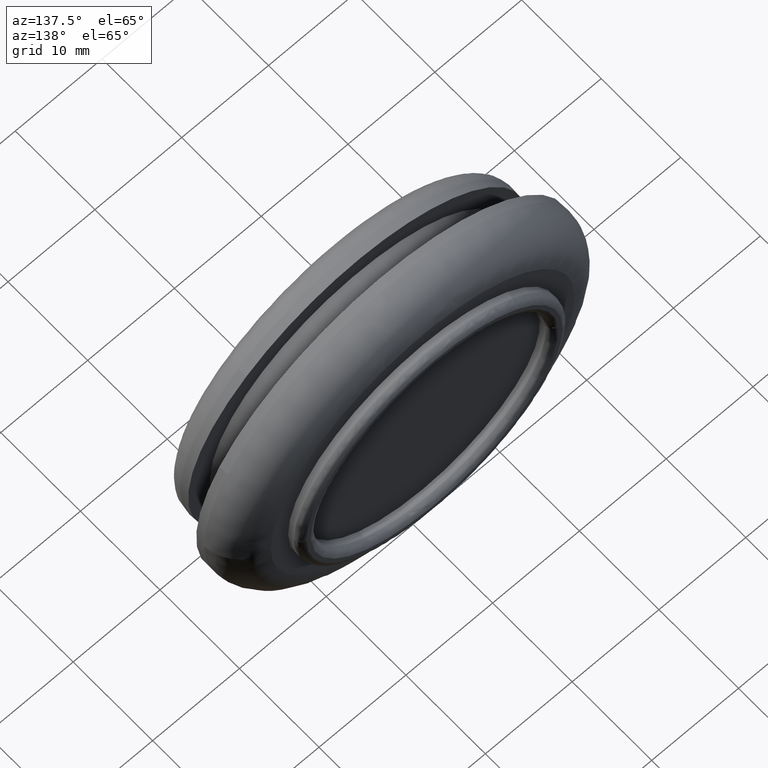
[diagram: clean part render]
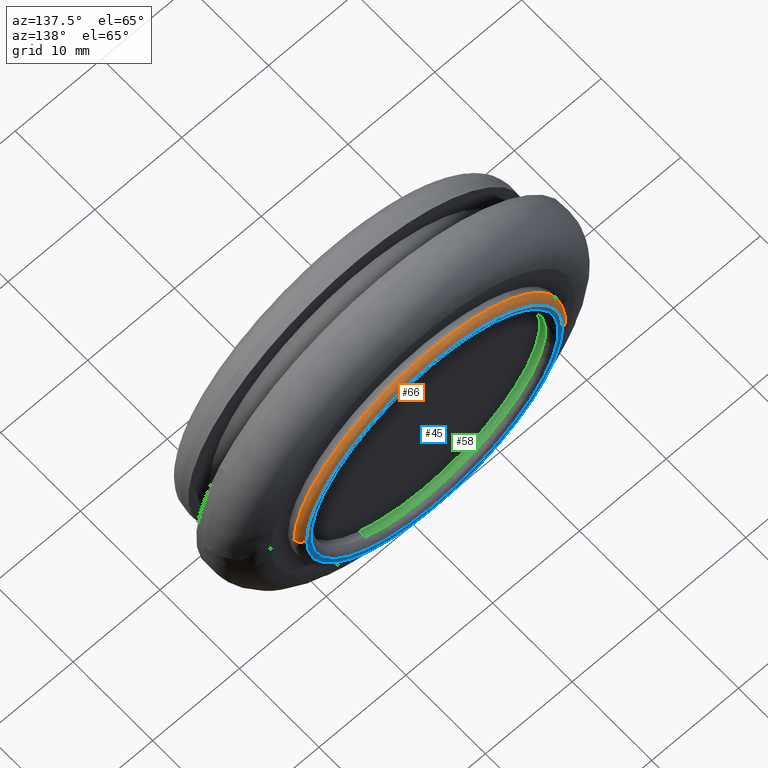
[diagram: same view with three faces highlighted in distinct colors, each labeled with its STEP entity id]
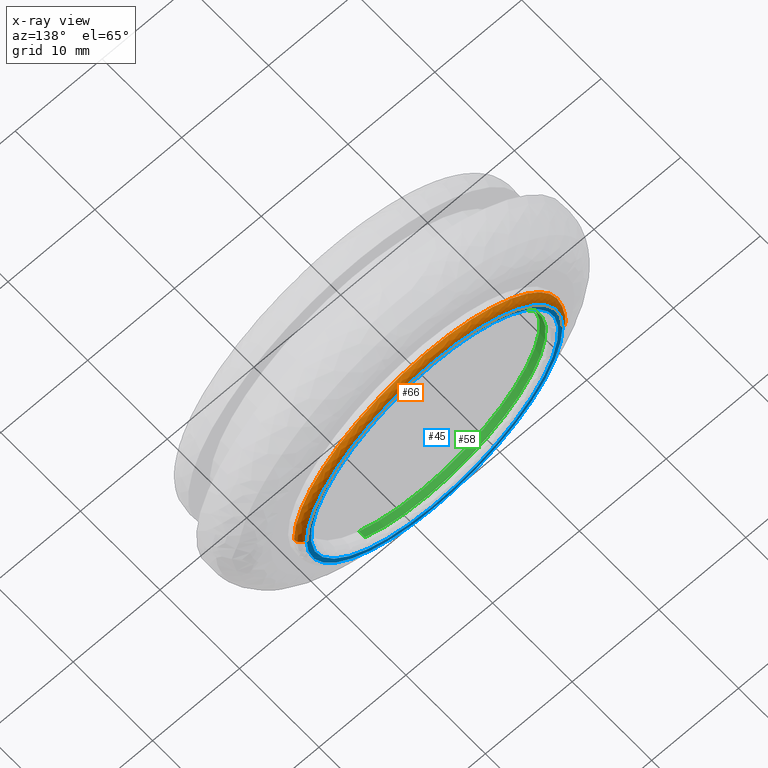
[diagram: x-ray of the same camera — body ghosted, the three highlighted faces saturated]
A machine part, auxiliary view with three faces highlighted in distinct colors.
The next image is the same camera in x-ray (body ghosted, the three faces saturated) — at least one of them is partly hidden behind the body in this view.
Their STEP definitions:

[orange] entity #66 — the highlighted face is a freeform B-spline surface patch.
#66=ADVANCED_FACE('',(#333),#332,.T.);
#332=( BOUNDED_SURFACE() B_SPLINE_SURFACE( 2,2,((#624,#625,#626,#627,#628),(#629,#630,#631,#632,#633),(#634,#635,#636,#637,#638),(#639,#640,#641,#642,#643),(#644,#645,#646,#647,#648)), .UNSPECIFIED.,.F.,.F.,.F.) B_SPLINE_SURFACE_WITH_KNOTS((3,2,3),(3,2,3),(0.00000000000E+000,5.00000000000E-001,1.00000000000E+000),(0.00000000000E+000,5.00000000000E-001,1.00000000000E+000), .UNSPECIFIED. ) GEOMETRIC_REPRESENTATION_ITEM() RATIONAL_B_SPLINE_SURFACE(((1.00000000000E+000,7.07106781127E-001,1.00000000000E+000,7.07106781127E-001,1.00000000000E+000),(7.07106781187E-001,4.99999999958E-001,7.07106781187E-001,4.99999999958E-001,7.07106781187E-001),(1.00000000000E+000,7.07106781127E-001,1.00000000000E+000,7.07106781127E-001,1.00000000000E+000),(7.07106781187E-001,4.99999999958E-001,7.07106781187E-001,4.99999999958E-001,7.07106781187E-001),(1.00000000000E+000,7.07106781127E-001,1.00000000000E+000,7.07106781127E-001,1.00000000000E+000))) REPRESENTATION_ITEM('') SURFACE() );
#333=FACE_OUTER_BOUND('',#649,.T.);
#624=CARTESIAN_POINT('',(1.40000000000E+001,1.19499999997E+001,6.02815841678E-014));
#625=CARTESIAN_POINT('',(1.39999999997E+001,1.26999999999E+001,5.72253133452E-014));
#626=CARTESIAN_POINT('',(1.47499999999E+001,1.27000000000E+001,5.72253103113E-014));
#627=CARTESIAN_POINT('',(1.55000000000E+001,1.27000000001E+001,5.72253072773E-014));
#628=CARTESIAN_POINT('',(1.55000000000E+001,1.19500000000E+001,6.02815780999E-014));
#629=CARTESIAN_POINT('',(1.40000000000E+001,1.19499999997E+001,1.40000000000E+001));
#630=CARTESIAN_POINT('',(1.39999999997E+001,1.26999999999E+001,1.39999999997E+001));
#631=CARTESIAN_POINT('',(1.47499999999E+001,1.27000000000E+001,1.47499999999E+001));
#632=CARTESIAN_POINT('',(1.55000000000E+001,1.27000000001E+001,1.55000000000E+001));
#633=CARTESIAN_POINT('',(1.55000000000E+001,1.19500000000E+001,1.55000000000E+001));
#634=CARTESIAN_POINT('',(-6.18438971550E-013,1.19499999997E+001,1.40000000000E+001));
#635=CARTESIAN_POINT('',(-5.92146565826E-013,1.26999999999E+001,1.39999999997E+001));
#636=CARTESIAN_POINT('',(-5.92100638534E-013,1.27000000000E+001,1.47499999999E+001));
#637=CARTESIAN_POINT('',(-5.92054711241E-013,1.27000000001E+001,1.55000000000E+001));
#638=CARTESIAN_POINT('',(-6.18347116964E-013,1.19500000000E+001,1.55000000000E+001));
#639=CARTESIAN_POINT('',(-1.40000000000E+001,1.19499999997E+001,1.40000000000E+001));
#640=CARTESIAN_POINT('',(-1.39999999997E+001,1.26999999999E+001,1.39999999997E+001));
#641=CARTESIAN_POINT('',(-1.47499999999E+001,1.27000000000E+001,1.47499999999E+001));
#642=CARTESIAN_POINT('',(-1.55000000000E+001,1.27000000001E+001,1.55000000000E+001));
#643=CARTESIAN_POINT('',(-1.55000000000E+001,1.19500000000E+001,1.55000000000E+001));
#644=CARTESIAN_POINT('',(-1.40000000000E+001,1.19499999997E+001,6.19962029335E-014));
#645=CARTESIAN_POINT('',(-1.39999999997E+001,1.26999999999E+001,5.89399321109E-014));
#646=CARTESIAN_POINT('',(-1.47499999999E+001,1.27000000000E+001,5.90317836537E-014));
#647=CARTESIAN_POINT('',(-1.55000000000E+001,1.27000000001E+001,5.91236351965E-014));
#648=CARTESIAN_POINT('',(-1.55000000000E+001,1.19500000000E+001,6.21799060191E-014));
#649=EDGE_LOOP('',(#808,#809,#810,#811,#812,#813));
#808=ORIENTED_EDGE('',*,*,#838,.T.);
#809=ORIENTED_EDGE('',*,*,#894,.T.);
#810=ORIENTED_EDGE('',*,*,#875,.F.);
#811=ORIENTED_EDGE('',*,*,#882,.F.);
#812=ORIENTED_EDGE('',*,*,#881,.F.);
#813=ORIENTED_EDGE('',*,*,#895,.F.);
#838=EDGE_CURVE('',#1065,#1057,#1066,.T.);
#875=EDGE_CURVE('',#1311,#1312,#1313,.T.);
#881=EDGE_CURVE('',#1345,#1352,#1353,.T.);
#882=EDGE_CURVE('',#1352,#1311,#1359,.T.);
#894=EDGE_CURVE('',#1057,#1312,#1438,.T.);
#895=EDGE_CURVE('',#1065,#1345,#1444,.T.);
#1057=VERTEX_POINT('',#1565);
#1065=VERTEX_POINT('',#1571);
#1066=CIRCLE('',#1575,1.47500000037E+001);
#1311=VERTEX_POINT('',#1725);
#1312=VERTEX_POINT('',#1726);
#1313=CIRCLE('',#1730,1.55000000000E+001);
#1345=VERTEX_POINT('',#1745);
#1352=VERTEX_POINT('',#1750);
#1353=CIRCLE('',#1754,1.55000000000E+001);
#1359=CIRCLE('',#1758,1.55000000000E+001);
#1438=(BOUNDED_CURVE() B_SPLINE_CURVE(2,(#1806,#1807,#1808),.UNSPECIFIED.,.F.,.F.) B_SPLINE_CURVE_WITH_KNOTS((3,3),(5.00000000000E-001,1.00000000000E+000),.UNSPECIFIED.) CURVE() GEOMETRIC_REPRESENTATION_ITEM() RATIONAL_B_SPLINE_CURVE((1.00000000000E+000,7.07106781127E-001,1.00000000000E+000)) REPRESENTATION_ITEM('') );
#1444=(BOUNDED_CURVE() B_SPLINE_CURVE(3,(#1809,#1810,#1811,#1812),.UNSPECIFIED.,.F.,.F.) B_SPLINE_CURVE_WITH_KNOTS((4,4),(4.99999952629E-001,1.00000000000E+000),.UNSPECIFIED.) CURVE() GEOMETRIC_REPRESENTATION_ITEM() RATIONAL_B_SPLINE_CURVE((1.00000000000E+000,1.00000000000E+000,1.00000000000E+000,1.00000000000E+000)) REPRESENTATION_ITEM('') );
#1565=CARTESIAN_POINT('',(-1.47500000054E+001,1.27000000000E+001,5.24831773129E-014));
#1571=CARTESIAN_POINT('',(1.47499999226E+001,1.27000000000E+001,1.53076834646E-003));
#1572=CARTESIAN_POINT('',(-1.67611080570E-009,1.27000000000E+001,-3.69534269851E-009));
#1573=DIRECTION('',(-4.91632583939E-017,-1.00000000000E+000,-4.22939962943E-016));
#1574=DIRECTION('',(1.13634587851E-010,4.22939962937E-016,-1.00000000000E+000));
#1575=AXIS2_PLACEMENT_3D('',#1572,#1573,#1574);
#1725=CARTESIAN_POINT('',(-9.64938741469E+000,1.19500000000E+001,1.21300998562E+001));
#1726=CARTESIAN_POINT('',(-1.55000000000E+001,1.19500000000E+001,6.01588320022E-014));
#1727=CARTESIAN_POINT('',(-4.06785716223E-013,1.19500000000E+001,-5.77315972805E-014));
#1728=DIRECTION('',(-5.42695541906E-014,-1.00000000000E+000,-1.39405942398E-012));
#1729=DIRECTION('',(7.82608254584E-001,-9.10294025569E-013,6.22514513772E-001));
#1730=AXIS2_PLACEMENT_3D('',#1727,#1728,#1729);
#1745=CARTESIAN_POINT('',(1.55000000000E+001,1.19500000000E+001,3.21307399356E-005));
#1750=CARTESIAN_POINT('',(1.21304279460E+001,1.19500000000E+001,9.64897496347E+000));
#1751=CARTESIAN_POINT('',(8.75743921824E-013,1.19500000002E+001,8.88178419700E-016));
#1752=DIRECTION('',(-1.32831735148E-011,-1.00000000000E+000,-2.82092688293E-011));
#1753=DIRECTION('',(-9.93311638785E-001,9.93716936694E-012,1.15464229328E-001));
#1754=AXIS2_PLACEMENT_3D('',#1751,#1752,#1753);
#1755=CARTESIAN_POINT('',(-4.06785716223E-013,1.19500000000E+001,-5.77315972805E-014));
#1756=DIRECTION('',(-5.42695541906E-014,-1.00000000000E+000,-1.39405942398E-012));
#1757=DIRECTION('',(7.82608254584E-001,-9.10294025569E-013,6.22514513772E-001));
#1758=AXIS2_PLACEMENT_3D('',#1755,#1756,#1757);
#1806=CARTESIAN_POINT('',(-1.47499999999E+001,1.27000000000E+001,5.54190755962E-014));
#1807=CARTESIAN_POINT('',(-1.55000000000E+001,1.27000000001E+001,5.53272301192E-014));
#1808=CARTESIAN_POINT('',(-1.55000000000E+001,1.19500000000E+001,5.83835009418E-014));
#1809=CARTESIAN_POINT('',(1.47499998994E+001,1.27000000000E+001,5.86197758120E-014));
#1810=CARTESIAN_POINT('',(1.52071067326E+001,1.26571068298E+001,5.93515082116E-014));
#1811=CARTESIAN_POINT('',(1.54571067661E+001,1.24071068298E+001,6.09304920315E-014));
#1812=CARTESIAN_POINT('',(1.55000000000E+001,1.19500000000E+001,6.33567272719E-014));

[blue] entity #45 — the highlighted planar face has unit normal (0, -1, 0).
#45=ADVANCED_FACE('',(#121,#122),#120,.F.);
#120=PLANE('',#373);
#121=FACE_OUTER_BOUND('',#374,.T.);
#122=FACE_BOUND('',#375,.T.);
#370=CARTESIAN_POINT('',(-3.06572993016E+001,1.27000000000E+001,3.39250000051E+001));
#371=DIRECTION('',(0.00000000000E+000,-1.00000000000E+000,0.00000000000E+000));
#372=DIRECTION('',(0.00000000000E+000,0.00000000000E+000,-1.00000000000E+000));
#373=AXIS2_PLACEMENT_3D('',#370,#371,#372);
#374=EDGE_LOOP('',(#673,#674,#675));
#375=EDGE_LOOP('',(#676,#677,#678));
#673=ORIENTED_EDGE('',*,*,#837,.F.);
#674=ORIENTED_EDGE('',*,*,#838,.F.);
#675=ORIENTED_EDGE('',*,*,#839,.F.);
#676=ORIENTED_EDGE('',*,*,#840,.T.);
#677=ORIENTED_EDGE('',*,*,#841,.T.);
#678=ORIENTED_EDGE('',*,*,#842,.T.);
#837=EDGE_CURVE('',#1057,#1058,#1059,.T.);
#838=EDGE_CURVE('',#1065,#1057,#1066,.T.);
#839=EDGE_CURVE('',#1058,#1065,#1072,.T.);
#840=EDGE_CURVE('',#1078,#1079,#1080,.T.);
#841=EDGE_CURVE('',#1079,#1086,#1087,.T.);
#842=EDGE_CURVE('',#1086,#1078,#1093,.T.);
#1057=VERTEX_POINT('',#1565);
#1058=VERTEX_POINT('',#1566);
#1059=CIRCLE('',#1570,1.47500000037E+001);
#1065=VERTEX_POINT('',#1571);
#1066=CIRCLE('',#1575,1.47500000037E+001);
#1072=CIRCLE('',#1579,1.47500000037E+001);
#1078=VERTEX_POINT('',#1580);
#1079=VERTEX_POINT('',#1581);
#1080=CIRCLE('',#1585,1.42499999999E+001);
#1086=VERTEX_POINT('',#1586);
#1087=CIRCLE('',#1590,1.42499999999E+001);
#1093=CIRCLE('',#1594,1.42499999999E+001);
#1565=CARTESIAN_POINT('',(-1.47500000054E+001,1.27000000000E+001,5.24831773129E-014));
#1566=CARTESIAN_POINT('',(-5.77315972805E-015,1.27000000000E+001,-1.47500000074E+001));
#1567=CARTESIAN_POINT('',(-1.67611080570E-009,1.27000000000E+001,-3.69534269851E-009));
#1568=DIRECTION('',(-4.91632583939E-017,-1.00000000000E+000,-4.22939962943E-016));
#1569=DIRECTION('',(1.13634587851E-010,4.22939962937E-016,-1.00000000000E+000));
#1570=AXIS2_PLACEMENT_3D('',#1567,#1568,#1569);
#1571=CARTESIAN_POINT('',(1.47499999226E+001,1.27000000000E+001,1.53076834646E-003));
#1572=CARTESIAN_POINT('',(-1.67611080570E-009,1.27000000000E+001,-3.69534269851E-009));
#1573=DIRECTION('',(-4.91632583939E-017,-1.00000000000E+000,-4.22939962943E-016));
#1574=DIRECTION('',(1.13634587851E-010,4.22939962937E-016,-1.00000000000E+000));
#1575=AXIS2_PLACEMENT_3D('',#1572,#1573,#1574);
#1576=CARTESIAN_POINT('',(-1.67611080570E-009,1.27000000000E+001,-3.69534269851E-009));
#1577=DIRECTION('',(-4.91632583939E-017,-1.00000000000E+000,-4.22939962943E-016));
#1578=DIRECTION('',(1.13634587851E-010,4.22939962937E-016,-1.00000000000E+000));
#1579=AXIS2_PLACEMENT_3D('',#1576,#1577,#1578);
#1580=CARTESIAN_POINT('',(9.65894031424E-015,1.27000000000E+001,1.42499999999E+001));
#1581=CARTESIAN_POINT('',(-1.42151609019E+001,1.27000000000E+001,9.95841620436E-001));
#1582=CARTESIAN_POINT('',(-2.35695907236E-011,1.27000000000E+001,-5.38182831633E-011));
#1583=DIRECTION('',(3.71140670362E-017,-1.00000000000E+000,4.10617536720E-015));
#1584=DIRECTION('',(1.65432945121E-012,4.10617536720E-015,1.00000000000E+000));
#1585=AXIS2_PLACEMENT_3D('',#1582,#1583,#1584);
#1586=CARTESIAN_POINT('',(1.42153109070E+001,1.27000000000E+001,-9.93698050410E-001));
#1587=CARTESIAN_POINT('',(-2.35695907236E-011,1.27000000000E+001,-5.38182831633E-011));
#1588=DIRECTION('',(3.71140670362E-017,-1.00000000000E+000,4.10617536720E-015));
#1589=DIRECTION('',(1.65432945121E-012,4.10617536720E-015,1.00000000000E+000));
#1590=AXIS2_PLACEMENT_3D('',#1587,#1588,#1589);
#1591=CARTESIAN_POINT('',(-2.35695907236E-011,1.27000000000E+001,-5.38182831633E-011));
#1592=DIRECTION('',(3.71140670362E-017,-1.00000000000E+000,4.10617536720E-015));
#1593=DIRECTION('',(1.65432945121E-012,4.10617536720E-015,1.00000000000E+000));
#1594=AXIS2_PLACEMENT_3D('',#1591,#1592,#1593);

[green] entity #58 — the highlighted cylindrical surface (partial cylindrical patch) has radius 13.5 mm, axis along (0, 1, 0).
#58=ADVANCED_FACE('',(#253),#252,.F.);
#252=CYLINDRICAL_SURFACE('',#524,1.35000000000E+001);
#253=FACE_OUTER_BOUND('',#525,.T.);
#521=CARTESIAN_POINT('',(1.37072214446E-015,1.19687500005E+001,-8.28905745580E-016));
#522=DIRECTION('',(3.47912818536E-015,1.00000000000E+000,2.40479357402E-015));
#523=DIRECTION('',(-5.42728861529E-001,-1.31581988104E-016,8.39907960948E-001));
#524=AXIS2_PLACEMENT_3D('',#521,#522,#523);
#525=EDGE_LOOP('',(#752,#753,#754,#755,#756,#757,#758,#759));
#752=ORIENTED_EDGE('',*,*,#867,.F.);
#753=ORIENTED_EDGE('',*,*,#866,.F.);
#754=ORIENTED_EDGE('',*,*,#865,.F.);
#755=ORIENTED_EDGE('',*,*,#863,.F.);
#756=ORIENTED_EDGE('',*,*,#873,.F.);
#757=ORIENTED_EDGE('',*,*,#834,.T.);
#758=ORIENTED_EDGE('',*,*,#836,.T.);
#759=ORIENTED_EDGE('',*,*,#874,.T.);
#834=EDGE_CURVE('',#1036,#1037,#1038,.T.);
#836=EDGE_CURVE('',#1037,#1044,#1051,.T.);
#863=EDGE_CURVE('',#1228,#1235,#1236,.T.);
#865=EDGE_CURVE('',#1235,#1248,#1249,.T.);
#866=EDGE_CURVE('',#1248,#1255,#1256,.T.);
#867=EDGE_CURVE('',#1255,#1262,#1263,.T.);
#873=EDGE_CURVE('',#1036,#1228,#1299,.T.);
#874=EDGE_CURVE('',#1044,#1262,#1305,.T.);
#1036=VERTEX_POINT('',#1550);
#1037=VERTEX_POINT('',#1551);
#1038=CIRCLE('',#1555,1.35000000000E+001);
#1044=VERTEX_POINT('',#1556);
#1051=CIRCLE('',#1564,1.35000000000E+001);
#1228=VERTEX_POINT('',#1681);
#1235=VERTEX_POINT('',#1686);
#1236=CIRCLE('',#1690,1.35000000000E+001);
#1248=VERTEX_POINT('',#1694);
#1249=CIRCLE('',#1698,1.35000000000E+001);
#1255=VERTEX_POINT('',#1699);
#1256=CIRCLE('',#1703,1.35000000000E+001);
#1262=VERTEX_POINT('',#1704);
#1263=CIRCLE('',#1708,1.35000000000E+001);
#1299=(BOUNDED_CURVE() B_SPLINE_CURVE(1,(#1721,#1722),.UNSPECIFIED.,.F.,.F.) B_SPLINE_CURVE_WITH_KNOTS((2,2),(8.33332935974E-002,9.16666633252E-001),.UNSPECIFIED.) CURVE() GEOMETRIC_REPRESENTATION_ITEM() RATIONAL_B_SPLINE_CURVE((1.00000000000E+000,1.00000000000E+000)) REPRESENTATION_ITEM('') );
#1305=(BOUNDED_CURVE() B_SPLINE_CURVE(1,(#1723,#1724),.UNSPECIFIED.,.F.,.F.) B_SPLINE_CURVE_WITH_KNOTS((2,2),(8.33333333334E-002,9.16666660698E-001),.UNSPECIFIED.) CURVE() GEOMETRIC_REPRESENTATION_ITEM() RATIONAL_B_SPLINE_CURVE((7.50000000000E-001,7.50000000000E-001)) REPRESENTATION_ITEM('') );
#1550=CARTESIAN_POINT('',(-7.32683962947E+000,1.12000000000E+001,1.13387574735E+001));
#1551=CARTESIAN_POINT('',(-8.88178419700E-016,1.12000000000E+001,-1.35000000000E+001));
#1552=CARTESIAN_POINT('',(4.95159468983E-013,1.12000000000E+001,6.53477272294E-013));
#1553=DIRECTION('',(-3.68164522410E-016,-1.00000000000E+000,-3.94561453473E-016));
#1554=DIRECTION('',(-3.64153152077E-014,3.94561453473E-016,-1.00000000000E+000));
#1555=AXIS2_PLACEMENT_3D('',#1552,#1553,#1554);
#1556=CARTESIAN_POINT('',(7.33025349980E+000,1.12000000000E+001,-1.13365507818E+001));
#1561=CARTESIAN_POINT('',(4.95159468983E-013,1.12000000000E+001,6.53477272294E-013));
#1562=DIRECTION('',(-3.68164522410E-016,-1.00000000000E+000,-3.94561453473E-016));
#1563=DIRECTION('',(-3.64153152077E-014,3.94561453473E-016,-1.00000000000E+000));
#1564=AXIS2_PLACEMENT_3D('',#1561,#1562,#1563);
#1681=CARTESIAN_POINT('',(-7.32684045795E+000,1.19500000001E+001,1.13387569382E+001));
#1686=CARTESIAN_POINT('',(-1.34671365968E+001,1.19500000004E+001,9.41398896282E-001));
#1687=CARTESIAN_POINT('',(6.91269264053E-012,1.19500000005E+001,-7.41451344766E-012));
#1688=DIRECTION('',(2.32606290182E-016,-1.00000000000E+000,-3.50010719995E-011));
#1689=DIRECTION('',(5.12051306705E-013,3.50010719995E-011,-1.00000000000E+000));
#1690=AXIS2_PLACEMENT_3D('',#1687,#1688,#1689);
#1694=CARTESIAN_POINT('',(-1.04169337163E+001,1.19500000000E+001,-8.58705374099E+000));
#1695=CARTESIAN_POINT('',(-1.39266376209E-012,1.19500000032E+001,-1.24344978758E-014));
#1696=DIRECTION('',(2.70745442850E-010,-1.00000000000E+000,9.16068149075E-010));
#1697=DIRECTION('',(9.97565673840E-001,2.06205949435E-010,-6.97332515765E-002));
#1698=AXIS2_PLACEMENT_3D('',#1695,#1696,#1697);
#1699=CARTESIAN_POINT('',(0.00000000000E+000,1.19500000000E+001,-1.35000000000E+001));
#1700=CARTESIAN_POINT('',(-3.55271367880E-014,1.19500000000E+001,-9.29034627006E-013));
#1701=DIRECTION('',(6.26290583421E-016,-1.00000000000E+000,8.13542324373E-015));
#1702=DIRECTION('',(7.71624719724E-001,5.65802548846E-015,6.36078054888E-001));
#1703=AXIS2_PLACEMENT_3D('',#1700,#1701,#1702);
#1704=CARTESIAN_POINT('',(7.32717182306E+000,1.19500000001E+001,-1.13385428109E+001));
#1705=CARTESIAN_POINT('',(1.02673425317E-012,1.19500000004E+001,7.54063478325E-013));
#1706=DIRECTION('',(1.07119851922E-013,-1.00000000000E+000,3.23944576173E-011));
#1707=DIRECTION('',(-5.42728534941E-001,2.71502326794E-011,8.39908171981E-001));
#1708=AXIS2_PLACEMENT_3D('',#1705,#1706,#1707);
#1721=CARTESIAN_POINT('',(-7.32683963064E+000,1.11999999642E+001,1.13387574728E+001));
#1722=CARTESIAN_POINT('',(-7.32683963064E+000,1.19499999704E+001,1.13387574728E+001));
#1723=CARTESIAN_POINT('',(7.32683963064E+000,1.12000000000E+001,-1.13387574728E+001));
#1724=CARTESIAN_POINT('',(7.32683963064E+000,1.19499999951E+001,-1.13387574728E+001));